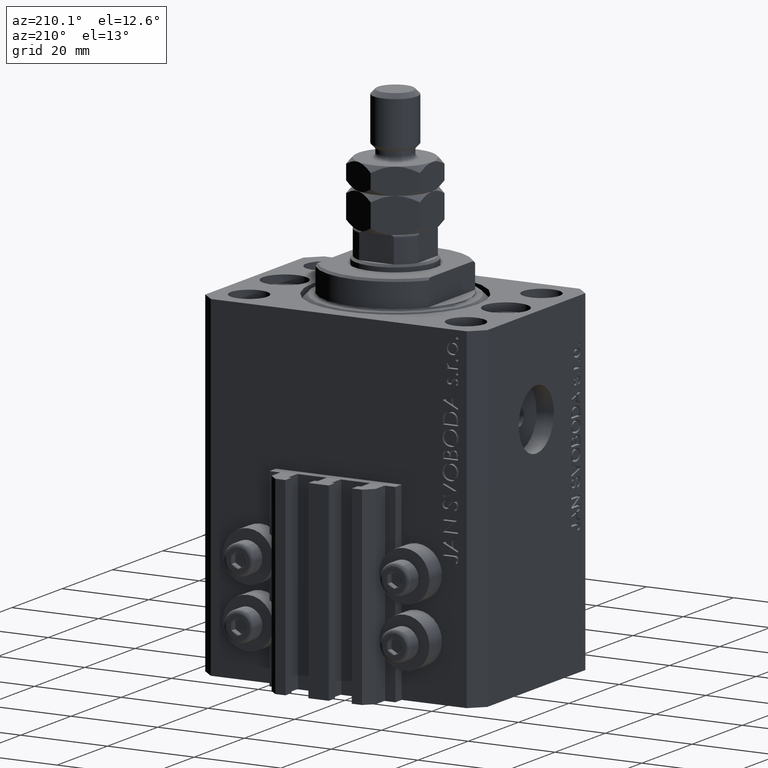
[diagram: clean part render]
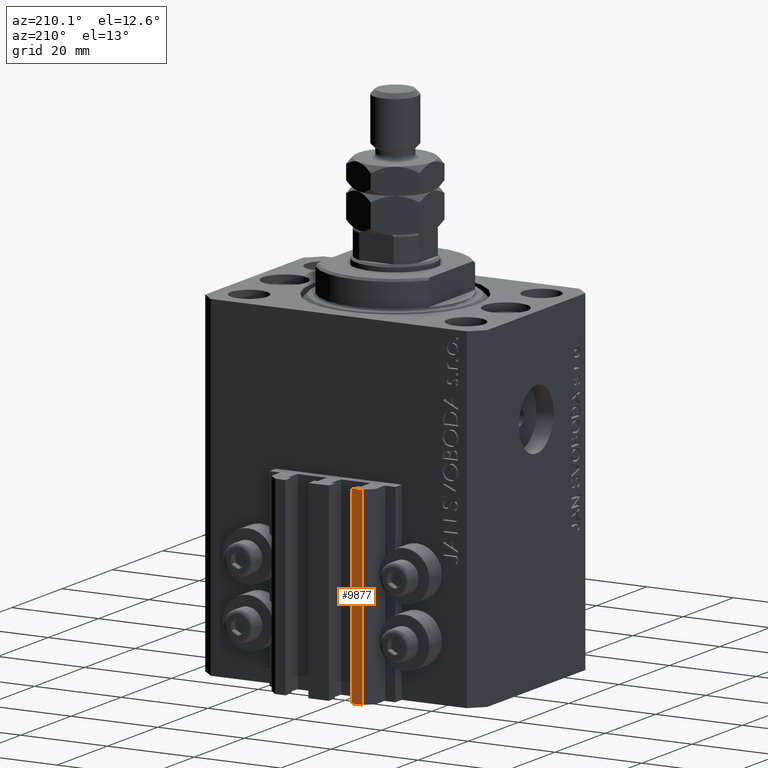
[diagram: same view with one face highlighted and labeled with its STEP entity id]
A machine part, auxiliary view. The second image highlights one B-rep face of the part: STEP entity #9877.
In plain terms, the highlighted planar face has unit normal (0, 1, 0).
Its self-contained STEP definition (entity closure, byte-faithful):
#345 = VECTOR ( 'NONE', #33245, 1000.000000000000000 ) ;
#1133 = VERTEX_POINT ( 'NONE', #28154 ) ;
#2264 = FACE_OUTER_BOUND ( 'NONE', #35661, .T. ) ;
#2593 = EDGE_CURVE ( 'NONE', #4548, #1133, #40159, .T. ) ;
#4105 = EDGE_CURVE ( 'NONE', #26540, #29668, #7781, .T. ) ;
#4489 = ORIENTED_EDGE ( 'NONE', *, *, #29819, .F. ) ;
#4548 = VERTEX_POINT ( 'NONE', #15813 ) ;
#7781 = LINE ( 'NONE', #21831, #36625 ) ;
#9877 = ADVANCED_FACE ( 'NONE', ( #2264 ), #46660, .T. ) ;
#13838 = ORIENTED_EDGE ( 'NONE', *, *, #17588, .T. ) ;
#14780 = CARTESIAN_POINT ( 'NONE',  ( -7.650000000000000355, 30.49999999999948486, -77.00000000000000000 ) ) ;
#15813 = CARTESIAN_POINT ( 'NONE',  ( -7.650000000000000355, 30.49999999999948486, -77.00000000000000000 ) ) ;
#15903 = CARTESIAN_POINT ( 'NONE',  ( -7.650000000000000355, 30.49999999999948486, -33.00000000000000000 ) ) ;
#16892 = VECTOR ( 'NONE', #35171, 1000.000000000000000 ) ;
#17588 = EDGE_CURVE ( 'NONE', #4548, #26540, #33556, .T. ) ;
#19376 = DIRECTION ( 'NONE',  ( -1.000000000000000000, 1.476360405086644852E-15, 0.000000000000000000 ) ) ;
#21260 = DIRECTION ( 'NONE',  ( -1.000000000000000000, 1.476360405086644852E-15, 0.000000000000000000 ) ) ;
#21831 = CARTESIAN_POINT ( 'NONE',  ( -10.00000000000000000, 30.49999999999948841, -77.00000000000000000 ) ) ;
#23564 = ORIENTED_EDGE ( 'NONE', *, *, #4105, .T. ) ;
#23614 = CARTESIAN_POINT ( 'NONE',  ( -10.00000000000000000, 30.49999999999948841, -33.00000000000000000 ) ) ;
#26540 = VERTEX_POINT ( 'NONE', #40608 ) ;
#28154 = CARTESIAN_POINT ( 'NONE',  ( -7.650000000000000355, 30.49999999999948486, -33.00000000000000000 ) ) ;
#29668 = VERTEX_POINT ( 'NONE', #23614 ) ;
#29819 = EDGE_CURVE ( 'NONE', #1133, #29668, #41844, .T. ) ;
#33245 = DIRECTION ( 'NONE',  ( 0.000000000000000000, 0.000000000000000000, 1.000000000000000000 ) ) ;
#33556 = LINE ( 'NONE', #14780, #16892 ) ;
#35171 = DIRECTION ( 'NONE',  ( -1.000000000000000000, 1.476360405086644852E-15, 0.000000000000000000 ) ) ;
#35661 = EDGE_LOOP ( 'NONE', ( #4489, #42886, #13838, #23564 ) ) ;
#36323 = DIRECTION ( 'NONE',  ( 1.476360405086644852E-15, 1.000000000000000000, -0.000000000000000000 ) ) ;
#36625 = VECTOR ( 'NONE', #37625, 1000.000000000000000 ) ;
#37563 = AXIS2_PLACEMENT_3D ( 'NONE', #42991, #36323, #21260 ) ;
#37625 = DIRECTION ( 'NONE',  ( 0.000000000000000000, 0.000000000000000000, 1.000000000000000000 ) ) ;
#40159 = LINE ( 'NONE', #48025, #345 ) ;
#40608 = CARTESIAN_POINT ( 'NONE',  ( -10.00000000000000000, 30.49999999999948841, -77.00000000000000000 ) ) ;
#41844 = LINE ( 'NONE', #15903, #47612 ) ;
#42886 = ORIENTED_EDGE ( 'NONE', *, *, #2593, .F. ) ;
#42991 = CARTESIAN_POINT ( 'NONE',  ( -7.650000000000000355, 30.49999999999948486, -77.00000000000000000 ) ) ;
#46660 = PLANE ( 'NONE',  #37563 ) ;
#47612 = VECTOR ( 'NONE', #19376, 1000.000000000000000 ) ;
#48025 = CARTESIAN_POINT ( 'NONE',  ( -7.650000000000000355, 30.49999999999948486, -77.00000000000000000 ) ) ;